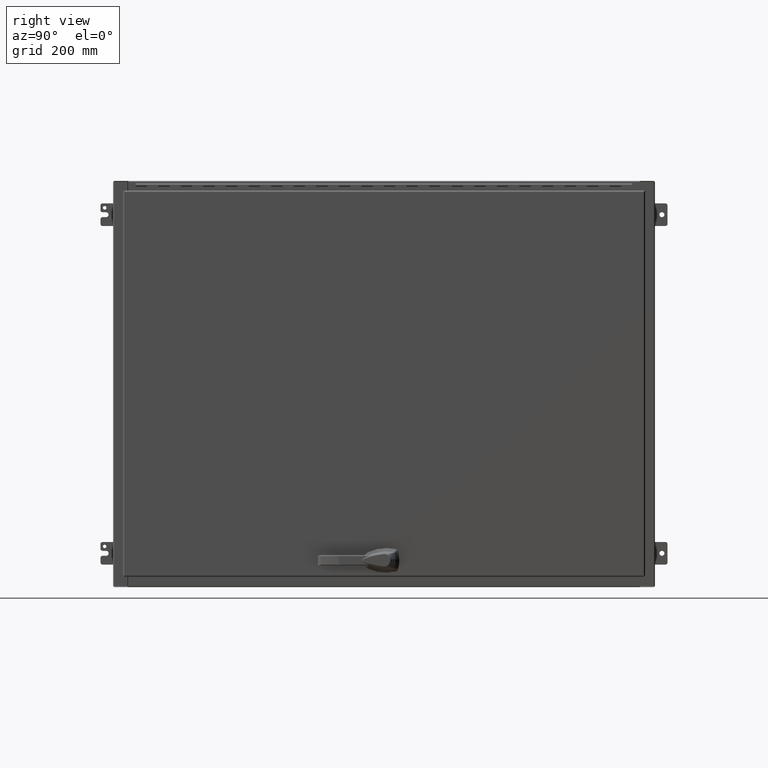
[diagram: clean part render]
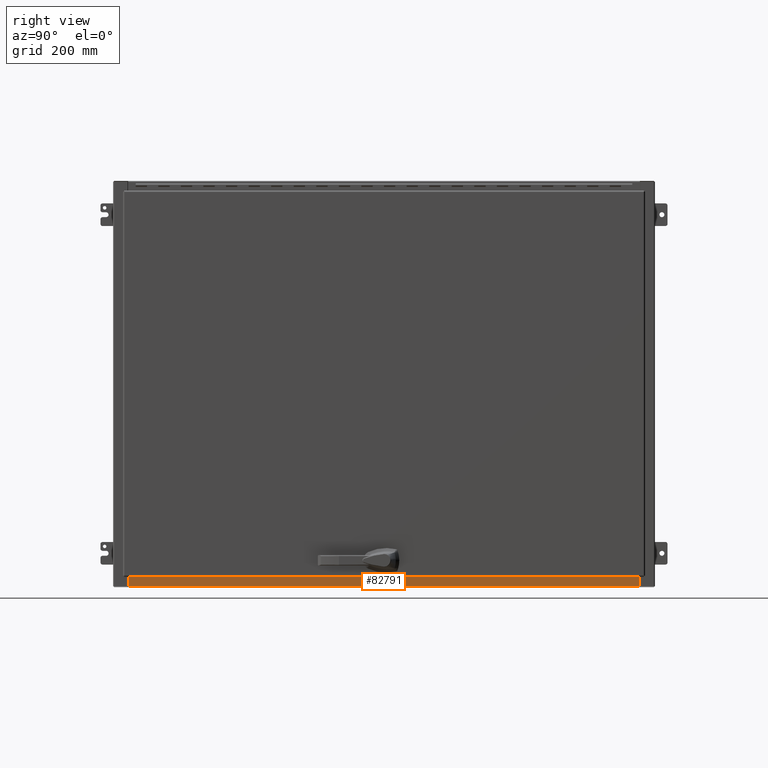
[diagram: same view with one face highlighted and labeled with its STEP entity id]
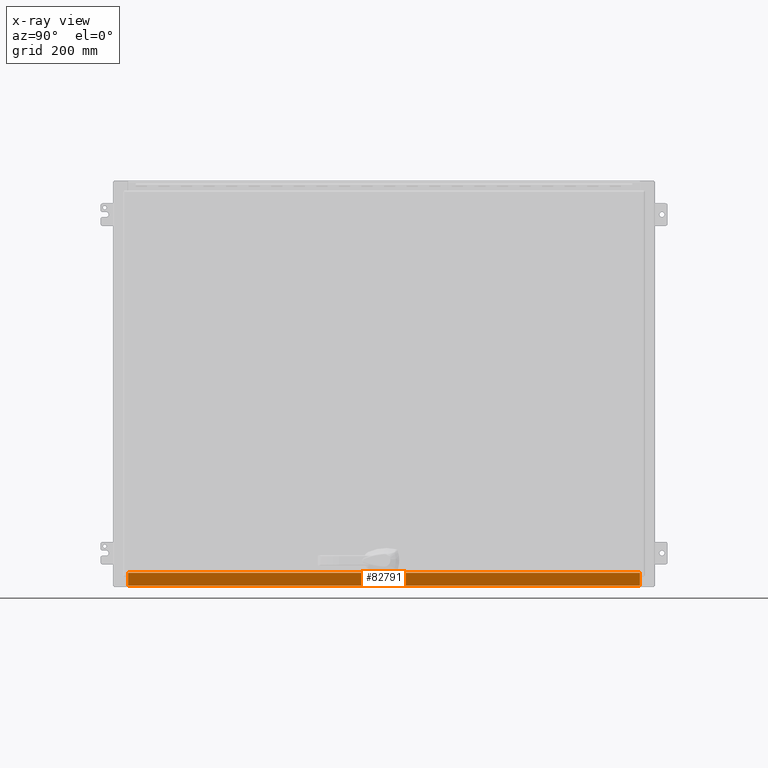
[diagram: x-ray of the same camera — body ghosted, the highlighted face saturated]
A machine part, right view. The second image highlights one B-rep face of the part: STEP entity #82791.
The next image is the same camera in x-ray: the body ghosted, the highlighted face saturated — about 0% of this face is hidden behind the body in this view.
In plain terms, the highlighted planar face has unit normal (-1, 0, 0).
Its self-contained STEP definition (entity closure, byte-faithful):
#4294 = ORIENTED_EDGE ( 'NONE', *, *, #72487, .F. ) ;
#4752 = DIRECTION ( 'NONE',  ( -4.777604732585080133E-16, -2.361791095414390128E-17, 1.000000000000000000 ) ) ;
#5112 = EDGE_LOOP ( 'NONE', ( #75377, #77034, #4294, #16365 ) ) ;
#5635 = CARTESIAN_POINT ( 'NONE',  ( 17.89199999999998170, -15.99999999999996092, 23.93750000000000355 ) ) ;
#16252 = VECTOR ( 'NONE', #44141, 39.37007874015748143 ) ;
#16365 = ORIENTED_EDGE ( 'NONE', *, *, #46027, .T. ) ;
#16435 = FACE_OUTER_BOUND ( 'NONE', #5112, .T. ) ;
#16619 = VECTOR ( 'NONE', #4752, 39.37007874015748143 ) ;
#19261 = DIRECTION ( 'NONE',  ( -5.551115123125770992E-17, 1.000000000000000000, 2.361791095414387355E-17 ) ) ;
#24711 = VERTEX_POINT ( 'NONE', #41877 ) ;
#28461 = CARTESIAN_POINT ( 'NONE',  ( 18.00000000000001066, -15.99999999999996092, -23.93750000000000355 ) ) ;
#29572 = PLANE ( 'NONE',  #110812 ) ;
#29998 = VECTOR ( 'NONE', #102092, 39.37007874015748143 ) ;
#31676 = CARTESIAN_POINT ( 'NONE',  ( 17.89199999999998880, -15.99999999999996092, 22.67050000000000054 ) ) ;
#39655 = CARTESIAN_POINT ( 'NONE',  ( 16.73300000000001120, -15.99999999999996092, -23.93750000000000355 ) ) ;
#41877 = CARTESIAN_POINT ( 'NONE',  ( 17.89200000000001012, -15.99999999999996092, -22.67050000000000054 ) ) ;
#42312 = LINE ( 'NONE', #5635, #29998 ) ;
#44141 = DIRECTION ( 'NONE',  ( 1.000000000000000000, 5.551115123125769760E-17, 4.777604732585080133E-16 ) ) ;
#44603 = LINE ( 'NONE', #65190, #92484 ) ;
#46027 = EDGE_CURVE ( 'NONE', #51939, #24711, #108048, .T. ) ;
#47077 = VERTEX_POINT ( 'NONE', #31676 ) ;
#49383 = EDGE_CURVE ( 'NONE', #47077, #80001, #44603, .T. ) ;
#51939 = VERTEX_POINT ( 'NONE', #86994 ) ;
#65190 = CARTESIAN_POINT ( 'NONE',  ( 17.89199999999998880, -15.99999999999996092, 22.67050000000000054 ) ) ;
#65969 = LINE ( 'NONE', #39655, #16619 ) ;
#69005 = CARTESIAN_POINT ( 'NONE',  ( 17.89200000000001012, -15.99999999999996092, -22.67050000000000054 ) ) ;
#72487 = EDGE_CURVE ( 'NONE', #51939, #80001, #65969, .T. ) ;
#75377 = ORIENTED_EDGE ( 'NONE', *, *, #86036, .F. ) ;
#77034 = ORIENTED_EDGE ( 'NONE', *, *, #49383, .T. ) ;
#80001 = VERTEX_POINT ( 'NONE', #110295 ) ;
#82791 = ADVANCED_FACE ( 'NONE', ( #16435 ), #29572, .F. ) ;
#86036 = EDGE_CURVE ( 'NONE', #47077, #24711, #42312, .T. ) ;
#86994 = CARTESIAN_POINT ( 'NONE',  ( 16.73300000000001120, -15.99999999999996092, -22.67050000000000054 ) ) ;
#89703 = DIRECTION ( 'NONE',  ( -4.777604732585080133E-16, -2.361791095414390128E-17, 1.000000000000000000 ) ) ;
#92484 = VECTOR ( 'NONE', #105732, 39.37007874015748143 ) ;
#102092 = DIRECTION ( 'NONE',  ( 4.777604732585080133E-16, -2.203176831335290067E-17, -1.000000000000000000 ) ) ;
#105732 = DIRECTION ( 'NONE',  ( -1.000000000000000000, -5.551115123125769760E-17, -4.777604732585080133E-16 ) ) ;
#108048 = LINE ( 'NONE', #69005, #16252 ) ;
#110295 = CARTESIAN_POINT ( 'NONE',  ( 16.73299999999998988, -15.99999999999996092, 22.67050000000000054 ) ) ;
#110812 = AXIS2_PLACEMENT_3D ( 'NONE', #28461, #19261, #89703 ) ;